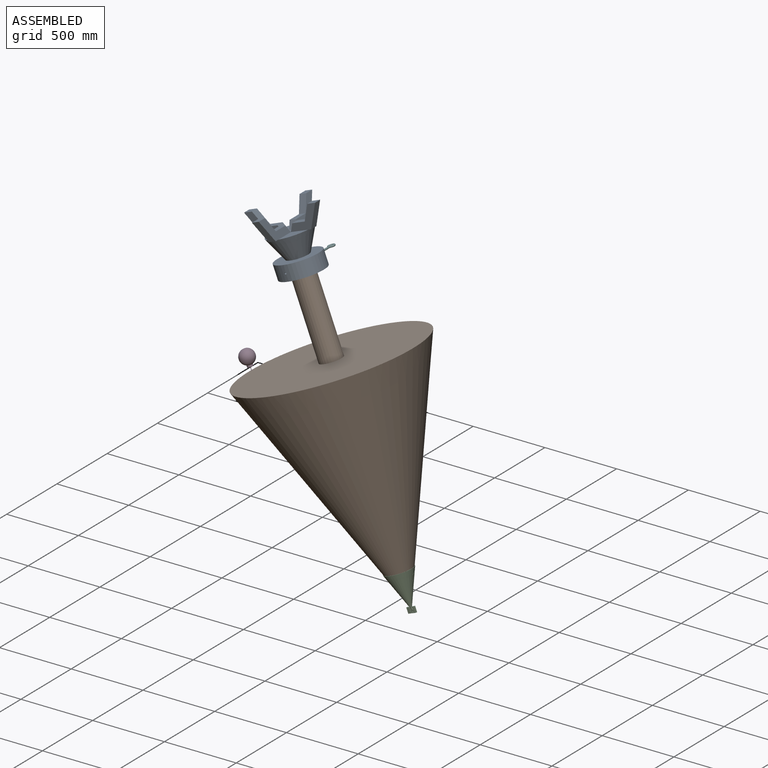
[diagram: assembled view]
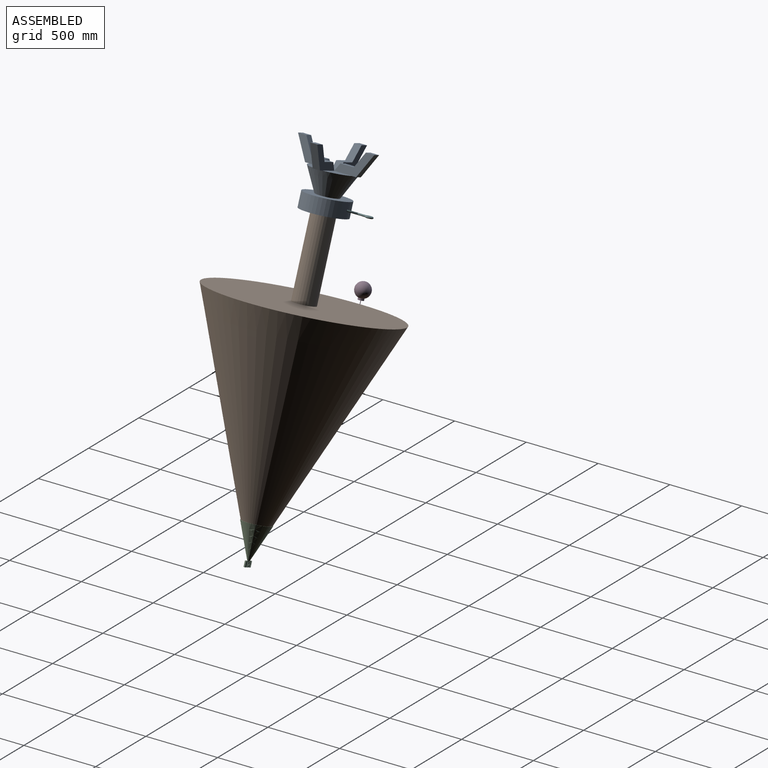
[diagram: assembled view, second angle]
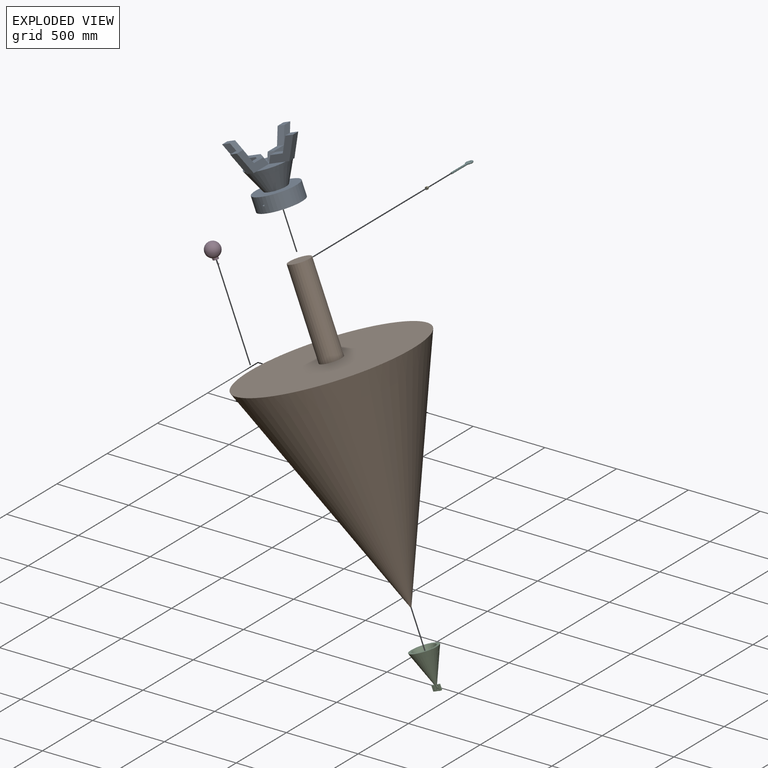
[diagram: exploded view]
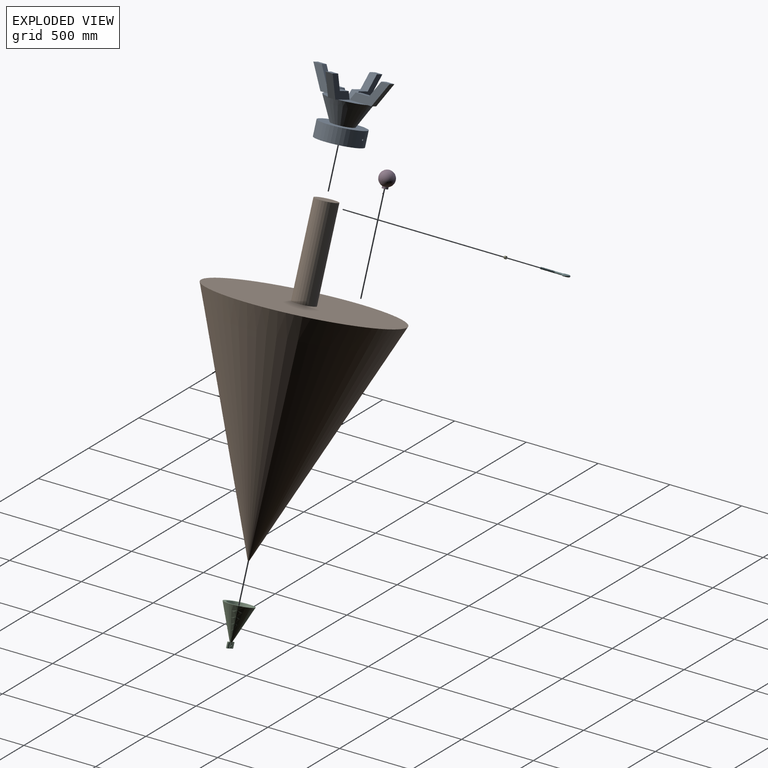
[diagram: exploded view, second angle]
ASSEMBLY  parts=6 mates=6
PART A: 45 faces, bbox 531.6x531.6x406.4 mm
  f0: plane 124.87x124.87mm, normal (0,0,-1), area 11180.7mm2, adj f12,f28,f44
  f1: plane 124.87x124.87mm, normal (0,0,-1), area 11180.7mm2, adj f12,f20,f43
  f2: plane 124.87x124.87mm, normal (0,0,-1), area 11180.7mm2, adj f12,f19,f35
  f3: plane 50.8x50.8mm, normal (0,0,-1), area 2580.6mm2, adj f14,f26,f34,f38
  f4: cylinder r=127mm len=254mm, axis (0,0,-1), area 60551.1mm2, adj f6,f8,f9,f10
  f5: cylinder r=152.4mm len=304.8mm, axis (0,0,-1), area 97034.2mm2, adj f6,f7,f9,f10
  f6: plane 304.8x304.8mm, normal (0,0,1), area 22295.1mm2, adj f4,f5
  f7: plane 304.8x304.8mm, normal (0,0,-1), area 54724.4mm2, adj f5,f12
  f8: plane 254x254mm, normal (0,0,1), area 50670.7mm2, adj f4
  f9: cylinder r=6.35mm len=25.56mm, axis (0,-1,0), area 1013.9mm2, adj f4,f5
  f10: cylinder r=6.35mm len=25.56mm, axis (0,-1,0), area 1013.9mm2, adj f4,f5
  f11: plane 124.87x124.87mm, normal (0,0,-1), area 11180.7mm2, adj f12,f27,f36
  f12: cone r=152.4mm half-angle=26.6deg, axis (0,0,-1), area 122367.5mm2, adj f0,f1,f2,f7,f11,f13,f21,f29
  f13: plane 50.8x27.53mm, normal (0,0,1), area 1326.3mm2, adj f12,f18,f19,f20
  f14: plane 50.8x50.8mm, normal (-0.87,0,-0.5), area 2979.9mm2, adj f3,f15,f19,f20
  f15: plane 93.74x50.8mm, normal (0,0,-1), area 4762.1mm2, adj f14,f16,f19,f20
  f16: plane 101.6x58.66mm, normal (-0.87,0,-0.5), area 5959.7mm2, adj f15,f17,f19,f20
  f17: plane 58.66x50.8mm, normal (0,0,-1), area 2979.9mm2, adj f16,f18,f19,f20
  f18: plane 152.4x87.99mm, normal (0.87,0,0.5), area 8939.6mm2, adj f13,f17,f19,f20
  f19: plane 240.39x152.4mm, normal (0,-1,0), area 13701.7mm2, adj f2,f13,f14,f15,f16,f17,f18
  f20: plane 240.39x152.4mm, normal (0,1,0), area 13701.7mm2, adj f1,f13,f14,f15,f16,f17,f18
  f21: plane 50.8x27.53mm, normal (0,0,1), area 1326.3mm2, adj f12,f22,f27,f28
  f22: plane 152.4x87.99mm, normal (-0.87,0,0.5), area 8939.6mm2, adj f21,f23,f27,f28
  f23: plane 58.66x50.8mm, normal (0,0,-1), area 2979.9mm2, adj f22,f24,f27,f28
  f24: plane 101.6x58.66mm, normal (0.87,0,-0.5), area 5959.7mm2, adj f23,f25,f27,f28
  f25: plane 93.74x50.8mm, normal (0,0,-1), area 4762.1mm2, adj f24,f26,f27,f28
  f26: plane 50.8x50.8mm, normal (0.87,0,-0.5), area 2979.9mm2, adj f3,f25,f27,f28
  f27: plane 240.39x152.4mm, normal (0,-1,0), area 13701.7mm2, adj f11,f21,f22,f23,f24,f25,f26
  f28: plane 240.39x152.4mm, normal (0,1,0), area 13701.7mm2, adj f0,f21,f22,f23,f24,f25,f26
  f29: plane 50.8x27.53mm, normal (0,0,1), area 1326.3mm2, adj f12,f30,f35,f36
  f30: plane 152.4x87.99mm, normal (0,-0.87,0.5), area 8939.6mm2, adj f29,f31,f35,f36
  f31: plane 58.66x50.8mm, normal (0,0,-1), area 2979.9mm2, adj f30,f32,f35,f36
  f32: plane 101.6x58.66mm, normal (0,0.87,-0.5), area 5959.7mm2, adj f31,f33,f35,f36
  f33: plane 93.74x50.8mm, normal (0,0,-1), area 4762.1mm2, adj f32,f34,f35,f36
  f34: plane 50.8x50.8mm, normal (0,0.87,-0.5), area 2979.9mm2, adj f3,f33,f35,f36
  f35: plane 240.39x152.4mm, normal (1,0,0), area 13701.7mm2, adj f2,f29,f30,f31,f32,f33,f34
  f36: plane 240.39x152.4mm, normal (-1,0,0), area 13701.7mm2, adj f11,f29,f30,f31,f32,f33,f34
  f37: plane 50.8x27.53mm, normal (0,0,1), area 1326.3mm2, adj f12,f42,f43,f44
  f38: plane 50.8x50.8mm, normal (0,-0.87,-0.5), area 2979.9mm2, adj f3,f39,f43,f44
  f39: plane 93.74x50.8mm, normal (0,0,-1), area 4762.1mm2, adj f38,f40,f43,f44
  f40: plane 101.6x58.66mm, normal (0,-0.87,-0.5), area 5959.7mm2, adj f39,f41,f43,f44
  f41: plane 58.66x50.8mm, normal (0,0,-1), area 2979.9mm2, adj f40,f42,f43,f44
  f42: plane 152.4x87.99mm, normal (0,0.87,0.5), area 8939.6mm2, adj f37,f41,f43,f44
  f43: plane 240.39x152.4mm, normal (1,0,0), area 13701.7mm2, adj f1,f37,f38,f39,f40,f41,f42
  f44: plane 240.39x152.4mm, normal (-1,0,0), area 13701.7mm2, adj f0,f37,f38,f39,f40,f41,f42
PART B: 4 faces, bbox 1219.2x1219.2x2133.6 mm
  f0: cylinder r=76.2mm len=609.6mm, axis (0,0,-1), area 291863.5mm2, adj f1,f3
  f1: plane 152.4x152.4mm, normal (0,0,-1), area 18241.5mm2, adj f0
  f2: cone r=0mm half-angle=21.8deg, axis (0,0,-1), area 3143466.2mm2, adj f3
  f3: plane 1219.2x1219.2mm, normal (0,0,-1), area 1149212.6mm2, adj f0,f2
PART C: 63 faces, bbox 193.6x193.6x261 mm
  f0: plane 60.96x38.1mm, normal (0,1,0), area 1216.5mm2, adj f1,f3,f4,f5,f6,f50,f51,f52
  f1: plane 33.8x3.81mm, normal (-1,0,0), area 128.8mm2, adj f0,f2,f3,f62
  f2: plane 37.78x21.06mm, normal (0,1,0), area 232.2mm2, adj f1,f3,f4,f60,f61,f62
  f3: plane 4.39x3.81mm, normal (0,0,1), area 16.7mm2, adj f0,f1,f2,f4
  f4: plane 37.78x3.81mm, normal (1,0,0), area 143.9mm2, adj f0,f2,f3,f60
  f5: cone r=96.72mm half-angle=21.8deg, axis (0,0,-1), area 0mm2, adj f0,f6
  f6: cone r=96.72mm half-angle=21.8deg, axis (0,0,-1), area 78828.7mm2, adj f0,f5,f7,f20,f21,f23,f42,f43
  f7: plane 15.92x15.71mm, normal (0,1,0), area 193.8mm2, adj f6,f8,f18,f19,f56
  f8: plane 15.71x3.81mm, normal (-1,0,0), area 59.9mm2, adj f7,f9,f18,f56
  f9: plane 37.96x24.13mm, normal (0,1,0), area 406.1mm2, adj f8,f10,f12,f13,f14,f15,f16,f17
  f10: plane 6.03x3.81mm, normal (0,0,1), area 23mm2, adj f9,f11,f12,f17
  f11: plane 15.02x14.44mm, normal (0,1,0), area 196.1mm2, adj f10,f12,f13,f14,f15,f16,f17
  f12: extruded ~6.82x3.81mm, area 27.5mm2, adj f9,f10,f11,f13
  f13: extruded ~5.54x3.81mm, area 23.4mm2, adj f9,f11,f12,f14
  f14: extruded ~5.4x3.81mm, area 23.1mm2, adj f9,f11,f13,f15
  f15: extruded ~7.09x3.81mm, area 28.2mm2, adj f9,f11,f14,f16
  f16: plane 5.71x3.81mm, normal (0,0,-1), area 21.8mm2, adj f9,f11,f15,f17
  f17: plane 14.44x3.81mm, normal (-1,0,0), area 55mm2, adj f9,f10,f11,f16
  f18: plane 7.89x3.81mm, normal (0,0,-1), area 30.1mm2, adj f7,f8,f9,f19
  f19: plane 13.79x8.03mm, normal (0.86,0,-0.5), area 60.8mm2, adj f7,f9,f18,f20
  f20: extruded ~4.54x3.81mm, area 19.6mm2, adj f6,f9,f19,f50
  f21: plane 193.44x193.44mm, normal (0,0,-1), area 11145.8mm2, adj f6,f22
  f22: cone r=0mm half-angle=21.8deg, axis (0,0,-1), area 49116.7mm2, adj f21
  f23: plane 15.92x15.71mm, normal (0,-1,0), area 193.8mm2, adj f6,f24,f40,f41,f60
  f24: plane 15.71x3.81mm, normal (1,0,0), area 59.9mm2, adj f23,f25,f40,f60
  f25: plane 37.96x24.13mm, normal (0,-1,0), area 406.1mm2, adj f24,f26,f27,f28,f29,f30,f31,f32
  f26: plane 37.78x3.81mm, normal (-1,0,0), area 143.9mm2, adj f25,f27,f43,f60
  f27: plane 10.36x3.81mm, normal (0,0,1), area 39.5mm2, adj f25,f26,f28,f43
  f28: extruded ~10.27x3.81mm, area 41.2mm2, adj f25,f27,f29,f43
  f29: extruded ~8.01x3.81mm, area 34.2mm2, adj f25,f28,f30,f43
  f30: extruded ~10.13x7.6mm, area 52mm2, adj f25,f29,f31,f43
  f31: plane 10.51x6.36mm, normal (0.86,0,0.52), area 46.8mm2, adj f25,f30,f42,f43
  f32: plane 6.03x3.81mm, normal (0,0,1), area 23mm2, adj f25,f33,f34,f39
  f33: plane 15.02x14.44mm, normal (0,-1,0), area 196.1mm2, adj f32,f34,f35,f36,f37,f38,f39
  f34: extruded ~6.82x3.81mm, area 27.5mm2, adj f25,f32,f33,f35
  f35: extruded ~5.54x3.81mm, area 23.4mm2, adj f25,f33,f34,f36
  f36: extruded ~5.4x3.81mm, area 23.1mm2, adj f25,f33,f35,f37
  f37: extruded ~7.09x3.81mm, area 28.2mm2, adj f25,f33,f36,f38
  f38: plane 5.71x3.81mm, normal (0,0,-1), area 21.8mm2, adj f25,f33,f37,f39
  f39: plane 14.44x3.81mm, normal (1,0,0), area 55mm2, adj f25,f32,f33,f38
  f40: plane 7.89x3.81mm, normal (0,0,-1), area 30.1mm2, adj f23,f24,f25,f41
  f41: plane 13.79x8.03mm, normal (-0.86,0,-0.5), area 60.8mm2, adj f23,f25,f40,f42
  f42: extruded ~4.54x3.81mm, area 19.6mm2, adj f6,f25,f31,f41
  f43: plane 60.96x38.1mm, normal (0,-1,0), area 1214.5mm2, adj f6,f26,f27,f28,f29,f30,f31,f44
  f44: plane 33.8x3.81mm, normal (1,0,0), area 128.8mm2, adj f43,f45,f46,f49
  f45: plane 37.78x21.06mm, normal (0,-1,0), area 232.2mm2, adj f44,f46,f47,f48,f49,f56
  f46: plane 4.39x3.81mm, normal (0,0,1), area 16.7mm2, adj f43,f44,f45,f47
  f47: plane 37.78x3.81mm, normal (-1,0,0), area 143.9mm2, adj f43,f45,f46,f56
  f48: plane 3.98x3.81mm, normal (1,0,0), area 15.2mm2, adj f43,f45,f49,f56
  f49: plane 16.67x3.81mm, normal (0,0,1), area 63.5mm2, adj f43,f44,f45,f48
  f50: plane 10.51x6.36mm, normal (-0.86,0,0.52), area 46.8mm2, adj f0,f9,f20,f51
  f51: extruded ~10.13x7.6mm, area 52mm2, adj f0,f9,f50,f52
  f52: extruded ~8.01x3.81mm, area 34.2mm2, adj f0,f9,f51,f53
  f53: extruded ~10.27x3.81mm, area 41.2mm2, adj f0,f9,f52,f54
  f54: plane 10.36x3.81mm, normal (0,0,1), area 39.5mm2, adj f0,f9,f53,f55
  f55: plane 37.78x3.81mm, normal (1,0,0), area 143.9mm2, adj f0,f9,f54,f56
  f56: plane 23.88x15.24mm, normal (0,0,-1), area 273.7mm2, adj f0,f6,f7,f8,f9,f43,f45,f47
  f57: plane 38.1x7.62mm, normal (1,0,0), area 290.3mm2, adj f0,f43,f56,f58
  f58: plane 60.96x7.62mm, normal (0,0,1), area 464.5mm2, adj f0,f43,f57,f59
  f59: plane 38.1x7.62mm, normal (-1,0,0), area 290.3mm2, adj f0,f43,f58,f60
  f60: plane 23.88x15.24mm, normal (0,0,-1), area 273.7mm2, adj f0,f2,f4,f6,f23,f24,f25,f26
  f61: plane 3.98x3.81mm, normal (-1,0,0), area 15.2mm2, adj f0,f2,f60,f62
  f62: plane 16.67x3.81mm, normal (0,0,1), area 63.5mm2, adj f0,f1,f2,f61
PART D: 6 faces, bbox 101.6x101.6x145.5 mm
  f0: sphere r=50.8mm, area 31246mm2, adj f1
  f1: cylinder r=19.05mm len=38.1mm, axis (0,0,-1), area 1583.8mm2, adj f0,f2
  f2: plane 38.1x38.1mm, normal (0,0,1), area 1128.7mm2, adj f1,f3
  f3: cylinder r=1.91mm len=25.4mm, axis (0,0,-1), area 304mm2, adj f2,f4
  f4: torus R=6.35mm, axis (0,1,0), area 238.8mm2, adj f3,f5
  f5: plane 3.81x3.81mm, normal (0,0,-1), area 11.4mm2, adj f4
PART E: 23 faces, bbox 22x11.1x22 mm
  f0: plane 19.05x19.05mm, normal (0,1,0), area 148.4mm2, adj f8,f9,f10,f11,f12,f13,f21
  f1: plane 19.05x19.05mm, normal (0,-1,0), area 148.4mm2, adj f2,f3,f4,f5,f6,f7,f20
  f2: cone r=9.53mm half-angle=60deg, axis (0,1,0), area 5.6mm2, adj f1,f16,f17
  f3: cone r=9.53mm half-angle=60deg, axis (0,1,0), area 5.6mm2, adj f1,f17,f18
  f4: cone r=9.53mm half-angle=60deg, axis (0,1,0), area 5.6mm2, adj f1,f18,f19
  f5: cone r=9.53mm half-angle=60deg, axis (0,1,0), area 5.6mm2, adj f1,f14,f19
  f6: cone r=9.53mm half-angle=60deg, axis (0,1,0), area 5.6mm2, adj f1,f14,f15
  f7: cone r=9.53mm half-angle=60deg, axis (0,1,0), area 5.6mm2, adj f1,f15,f16
  f8: cone r=11mm half-angle=60deg, axis (0,-1,0), area 5.6mm2, adj f0,f16,f17
  f9: cone r=11mm half-angle=60deg, axis (0,-1,0), area 5.6mm2, adj f0,f17,f18
  f10: cone r=11mm half-angle=60deg, axis (0,-1,0), area 5.6mm2, adj f0,f18,f19
  f11: cone r=11mm half-angle=60deg, axis (0,-1,0), area 5.6mm2, adj f0,f14,f19
  f12: cone r=11mm half-angle=60deg, axis (0,-1,0), area 5.6mm2, adj f0,f14,f15
  f13: cone r=11mm half-angle=60deg, axis (0,-1,0), area 5.6mm2, adj f0,f15,f16
  f14: plane 11.12x9.53mm, normal (-0.5,0,0.87), area 115.8mm2, adj f5,f6,f11,f12,f15,f19
  f15: plane 11.12x11.01mm, normal (-1,0,0), area 115.8mm2, adj f6,f7,f12,f13,f14,f16
  f16: plane 11.12x9.53mm, normal (-0.5,0,-0.87), area 115.8mm2, adj f2,f7,f8,f13,f15,f17
  f17: plane 11.12x9.53mm, normal (0.5,0,-0.87), area 115.8mm2, adj f2,f3,f8,f9,f16,f18
  f18: plane 11.12x11.01mm, normal (1,0,0), area 115.8mm2, adj f3,f4,f9,f10,f17,f19
  f19: plane 11.12x9.53mm, normal (0.5,0,0.87), area 115.8mm2, adj f4,f5,f10,f11,f14,f18
  f20: cone r=6.35mm half-angle=45deg, axis (0,-1,0), area 14mm2, adj f1,f22
  f21: cone r=6.59mm half-angle=45deg, axis (0,1,0), area 14mm2, adj f0,f22
  f22: cylinder r=6.35mm len=12.7mm, axis (0,-1,0), area 423.9mm2, adj f20,f21
PART F: 67 faces, bbox 55.8x208.9x15.7 mm
  f0: torus R=7.41mm, axis (0,0,1), area 174.2mm2, adj f1,f2,f61,f63,f66
  f1: torus R=7.41mm, axis (0,0,1), area 10.2mm2, adj f0,f2,f64
  f2: cylinder r=6.35mm len=51.29mm, axis (0,1,0), area 2015.7mm2, adj f0,f1,f3,f55,f57,f60,f65
  f3: cylinder r=6.35mm len=12.7mm, axis (0,1,0), area 9.7mm2, adj f2,f4,f55,f57
  f4: cylinder r=6.35mm len=12.7mm, axis (0,1,0), area 9.7mm2, adj f3,f5,f55,f57
  f5: cylinder r=6.35mm len=12.7mm, axis (0,1,0), area 9.7mm2, adj f4,f6,f55,f57
  f6: cylinder r=6.35mm len=12.7mm, axis (0,1,0), area 9.7mm2, adj f5,f7,f55,f57
  f7: cylinder r=6.35mm len=12.7mm, axis (0,1,0), area 9.7mm2, adj f6,f8,f55,f57
  f8: cylinder r=6.35mm len=12.7mm, axis (0,1,0), area 9.7mm2, adj f7,f9,f55,f57
  f9: cylinder r=6.35mm len=12.7mm, axis (0,1,0), area 9.7mm2, adj f8,f10,f55,f57
  f10: cylinder r=6.35mm len=12.7mm, axis (0,1,0), area 9.7mm2, adj f9,f11,f55,f57
  f11: cylinder r=6.35mm len=12.7mm, axis (0,1,0), area 9.7mm2, adj f10,f12,f55,f57
  f12: cylinder r=6.35mm len=12.7mm, axis (0,1,0), area 9.7mm2, adj f11,f13,f55,f57
  f13: cylinder r=6.35mm len=12.7mm, axis (0,1,0), area 9.7mm2, adj f12,f14,f55,f57
  f14: cylinder r=6.35mm len=12.7mm, axis (0,1,0), area 9.7mm2, adj f13,f15,f55,f57
  f15: cylinder r=6.35mm len=12.7mm, axis (0,1,0), area 9.7mm2, adj f14,f16,f55,f57
  f16: cylinder r=6.35mm len=12.7mm, axis (0,1,0), area 9.7mm2, adj f15,f17,f55,f57
  f17: cylinder r=6.35mm len=12.7mm, axis (0,1,0), area 9.7mm2, adj f16,f18,f55,f57
  f18: cylinder r=6.35mm len=12.7mm, axis (0,1,0), area 9.7mm2, adj f17,f19,f55,f57
  f19: cylinder r=6.35mm len=12.7mm, axis (0,1,0), area 9.7mm2, adj f18,f20,f55,f57
  f20: cylinder r=6.35mm len=12.7mm, axis (0,1,0), area 9.7mm2, adj f19,f21,f55,f57
  f21: cylinder r=6.35mm len=12.7mm, axis (0,1,0), area 9.8mm2, adj f20,f22,f55,f57
  f22: cylinder r=6.35mm len=12.7mm, axis (0,1,0), area 9.7mm2, adj f21,f23,f55,f57
  f23: cylinder r=6.35mm len=12.7mm, axis (0,1,0), area 9.7mm2, adj f22,f24,f55,f57
  f24: cylinder r=6.35mm len=12.7mm, axis (0,1,0), area 9.7mm2, adj f23,f25,f55,f57
  f25: cylinder r=6.35mm len=12.7mm, axis (0,1,0), area 9.7mm2, adj f24,f26,f55,f57
  f26: cylinder r=6.35mm len=12.7mm, axis (0,1,0), area 9.7mm2, adj f25,f27,f55,f57
  f27: cylinder r=6.35mm len=12.7mm, axis (0,1,0), area 9.7mm2, adj f26,f28,f55,f57
  f28: cylinder r=6.35mm len=12.7mm, axis (0,1,0), area 9.7mm2, adj f27,f29,f55,f57
  f29: cylinder r=6.35mm len=12.7mm, axis (0,1,0), area 9.7mm2, adj f28,f30,f55,f57
  f30: cylinder r=6.35mm len=12.7mm, axis (0,1,0), area 9.8mm2, adj f29,f31,f55,f57
  f31: cylinder r=6.35mm len=12.7mm, axis (0,1,0), area 9.7mm2, adj f30,f32,f55,f57
  f32: cylinder r=6.35mm len=12.7mm, axis (0,1,0), area 9.7mm2, adj f31,f33,f55,f57
  f33: cylinder r=6.35mm len=12.7mm, axis (0,1,0), area 9.7mm2, adj f32,f34,f55,f57
  f34: cylinder r=6.35mm len=12.7mm, axis (0,1,0), area 9.7mm2, adj f33,f35,f55,f57
  f35: cylinder r=6.35mm len=12.7mm, axis (0,1,0), area 9.7mm2, adj f34,f36,f55,f57
  f36: cylinder r=6.35mm len=12.7mm, axis (0,1,0), area 9.7mm2, adj f35,f37,f55,f57
  f37: cylinder r=6.35mm len=12.7mm, axis (0,1,0), area 9.7mm2, adj f36,f38,f55,f57
  f38: cylinder r=6.35mm len=12.7mm, axis (0,1,0), area 9.7mm2, adj f37,f39,f55,f57
  f39: cylinder r=6.35mm len=12.7mm, axis (0,1,0), area 9.7mm2, adj f38,f40,f55,f57
  f40: cylinder r=6.35mm len=12.7mm, axis (0,1,0), area 9.7mm2, adj f39,f41,f55,f57
  f41: cylinder r=6.35mm len=12.7mm, axis (0,1,0), area 9.7mm2, adj f40,f42,f55,f57
  f42: cylinder r=6.35mm len=12.7mm, axis (0,1,0), area 9.7mm2, adj f41,f43,f55,f57
  f43: cylinder r=6.35mm len=12.7mm, axis (0,1,0), area 9.7mm2, adj f42,f44,f55,f57
  f44: cylinder r=6.35mm len=12.7mm, axis (0,1,0), area 9.7mm2, adj f43,f45,f55,f57
  f45: cylinder r=6.35mm len=12.7mm, axis (0,1,0), area 9.7mm2, adj f44,f46,f55,f57
  f46: cylinder r=6.35mm len=12.7mm, axis (0,1,0), area 9.7mm2, adj f45,f47,f55,f57
  f47: cylinder r=6.35mm len=12.7mm, axis (0,1,0), area 9.7mm2, adj f46,f48,f55,f57
  f48: cylinder r=6.35mm len=12.7mm, axis (0,1,0), area 9.7mm2, adj f47,f49,f55,f57
  f49: cylinder r=6.35mm len=12.7mm, axis (0,1,0), area 9.7mm2, adj f48,f50,f55,f57
  f50: cylinder r=6.35mm len=12.7mm, axis (0,1,0), area 9.7mm2, adj f49,f51,f55,f57
  f51: cylinder r=6.35mm len=12.7mm, axis (0,1,0), area 9.7mm2, adj f50,f52,f55,f57
  f52: cylinder r=6.35mm len=12.7mm, axis (0,1,0), area 9.7mm2, adj f51,f53,f55,f57
  f53: cylinder r=6.35mm len=12.7mm, axis (0,1,0), area 9.7mm2, adj f52,f54,f55,f57,f58
  f54: cylinder r=6.35mm len=4.31mm, axis (0,1,0), area 0.5mm2, adj f53,f55,f58
  f55: bspline ~104.02x14.91mm, area 1869.2mm2, adj f2,f3,f4,f5,f6,f7,f8,f9
  f56: bspline ~102.17x11.73mm, area 406.3mm2, adj f55,f57,f58,f60
  f57: bspline ~105.22x12.89mm, area 1386.5mm2, adj f2,f3,f4,f5,f6,f7,f8,f9
  f58: cone r=4.87mm half-angle=45deg, axis (0,1,0), area 40.7mm2, adj f53,f54,f55,f56,f57,f59
  f59: plane 9.74x9.74mm, normal (0,-1,0), area 74.5mm2, adj f58
  f60: plane 13.49x13.49mm, normal (0,-1,0), area 23.4mm2, adj f2,f55,f56,f57
  f61: torus R=19.05mm, axis (0,0,-1), area 4192.6mm2, adj f0,f62
  f62: cylinder r=6.35mm len=16.34mm, axis (0.89,0.46,0), area 274mm2, adj f61,f63,f64,f65,f66
  f63: bspline ~12.7x8.71mm, area 0mm2, adj f0,f62
  f64: bspline ~6.94x3.84mm, area 5mm2, adj f1,f62,f65
  f65: bspline ~9.37x3.77mm, area 32.7mm2, adj f2,f62,f64,f66
  f66: bspline ~7.09x3.94mm, area 5mm2, adj f0,f62,f65
PLACE A rot(axis=(0,1,0),158.6deg) t=(-781.28,-482.49,1041.37)mm
PLACE B rot(axis=(0,1,0),158.6deg) t=(-772,-482.49,1017.73)mm
PLACE C rot(axis=(0,1,0),158.6deg) t=(4.84,-485.03,-905.21)mm
PLACE D rot(axis=(0,1,0),158.6deg) t=(-1136.14,-482.49,311.94)mm
PLACE E rot(axis=(-0.1,-0.99,-0.09),0deg) t=(-762.72,-211.1,994.08)mm
PLACE F rot(axis=(0,1,0),158.6deg) t=(-762.72,-178,994.08)mm
MATE fastened C.f22 <-> B.f0  axis (-0.37,0,0.93) through (7.77,-482.49,-968.27)mm
MATE revolute F.f2 <-> A.f9  axis (0,-1,0) through (-762.72,-355.8,994.08)mm
MATE revolute E.f22 <-> A.f9  axis (0,-1,0) through (-762.72,-355.8,994.08)mm
MATE slider F.f2 <-> A.f9  axis (0,-1,0) through (-762.72,-355.8,994.08)mm
MATE fastened A.f4 <-> B.f0  axis (0.37,0,-0.93) through (-772,-482.49,1017.73)mm
MATE fastened D.f5 <-> B.f3  axis (-0.37,0,0.93) through (-1092.99,-482.49,236.79)mm
